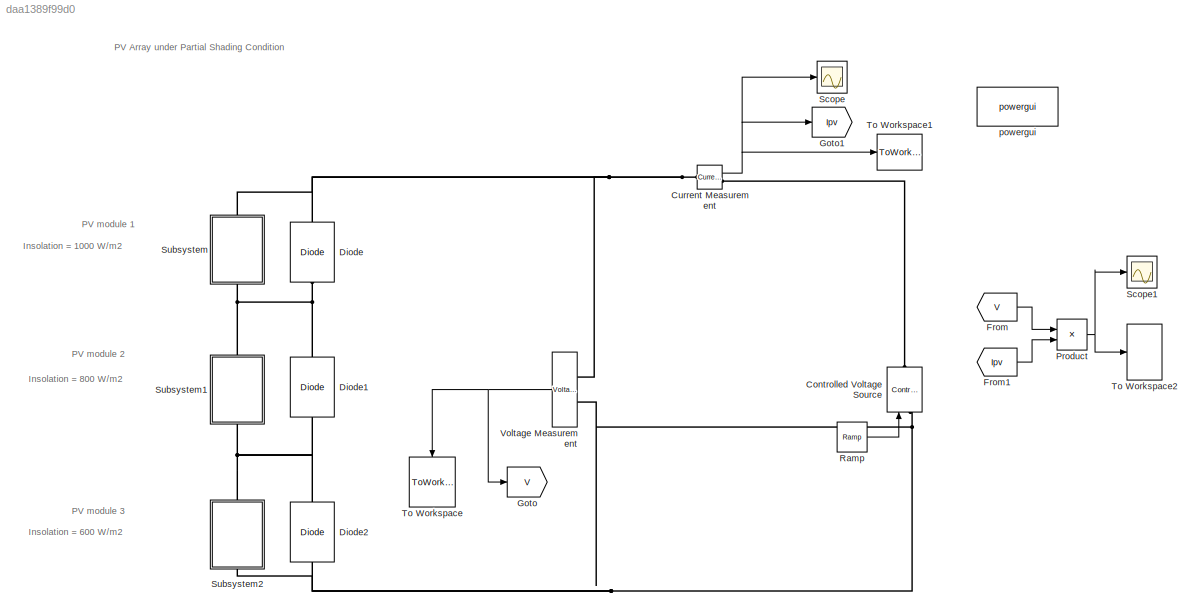
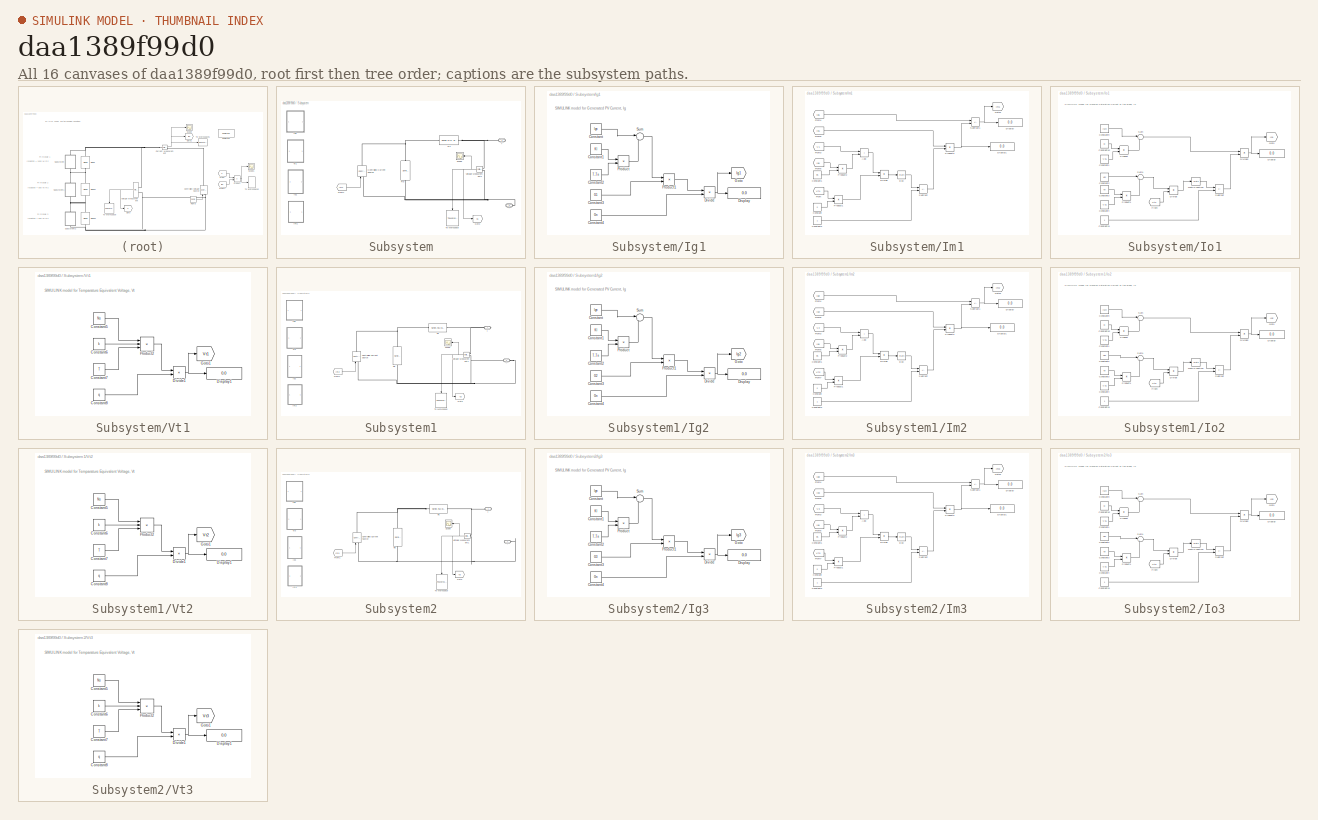
[diagram: thumbnail index - all 16 canvases of the model, root first then tree order]
MODEL slx_daa1389f99d0
KIND model
CONFIG AbsTol = auto
CONFIG EnableMultiTasking = off
CONFIG FixedStep = auto
CONFIG InitFcn = Voc=32.9;\nIscn=8.21;\nk=1.38e-23;\nNs=54;\nNp=1;\nG1=1000;\nG2=800;\nG3=600;\nGn=1000;\nKv=-0.1230;\nKI=0.0032;\nT=301;\nTn=300;\nq=1.6e-19;\nn=1;\nI0n=9.85e-8;\nEg=1.12;\nIgn=8.214;\nRs=0.221;\nRp=414.5;\na=1.0
CONFIG MaxStep = auto
CONFIG MinStep = auto
CONFIG RelTol = 1e-3
CONFIG SampleTimeConstraint = Unconstrained
CONFIG Solver = VariableStepAuto
CONFIG SolverName = VariableStepAuto
CONFIG StartTime = 0.0
CONFIG StopTime = 100
BLOCK [Reference] Controlled Voltage Source  REF=powerlib/Electrical
Sources/Controlled Voltage Source
  NameLocation = right
  Ports = [1, 0, 0, 0, 0, 1, 1]
  SourceBlock = powerlib/Electrical\nSources/Controlled Voltage Source
  SourceProductBaseCode = PS
  SourceType = Controlled Voltage Source
BLOCK [Reference] Current Measurement  REF=powerlib/Measurements/Current Measurement
  Ports = [0, 1, 0, 0, 0, 1, 1]
  SourceBlock = powerlib/Measurements/Current Measurement
  SourceProductBaseCode = PS
  SourceType = Current Measurement
  UserDataPersistent = on
BLOCK [Reference] Diode  REF=powerlib/Power
Electronics/Diode
  NameLocation = right
  Ports = [0, 0, 0, 0, 0, 1, 1]
  SourceBlock = powerlib/Power\nElectronics/Diode
  SourceProductBaseCode = PS
  SourceType = Diode
BLOCK [Reference] Diode1  REF=powerlib/Power
Electronics/Diode
  NameLocation = right
  Ports = [0, 0, 0, 0, 0, 1, 1]
  SourceBlock = powerlib/Power\nElectronics/Diode
  SourceProductBaseCode = PS
  SourceType = Diode
BLOCK [Reference] Diode2  REF=powerlib/Power
Electronics/Diode
  NameLocation = right
  Ports = [0, 0, 0, 0, 0, 1, 1]
  SourceBlock = powerlib/Power\nElectronics/Diode
  SourceProductBaseCode = PS
  SourceType = Diode
BLOCK [From] From
  GotoTag = V
  TagVisibility = global
BLOCK [From] From1
  GotoTag = Ipv
  TagVisibility = global
BLOCK [Goto] Goto
  GotoTag = V
  TagVisibility = global
BLOCK [Goto] Goto1
  GotoTag = Ipv
  TagVisibility = global
BLOCK [Product] Product
  Ports = [2, 1]
BLOCK [Reference] Ramp  REF=simulink/Sources/Ramp
  Ports = [0, 1]
  SourceBlock = simulink/Sources/Ramp
  SourceProductBaseCode = SL
  SourceType = Ramp
BLOCK [Scope] Scope
  Floating = off
  NumInputPorts = 1
  Ports = [1]
  ScopeSpecificationString = Simulink.scopes.TimeScopeBlockCfg('CurrentConfiguration', extmgr.ConfigurationSet(extmgr.Configuration('Core','General UI',true),extmgr.Configuration('Core','Source UI',true),extmgr.Configuration('Sources','WiredSimulink',true),extmgr.Configuration('Visuals','Time Domain',true,'SerializedDisplays',{struct('MinYLimReal','-3.52234','MaxYLimReal','9.51242','YLabelReal','','MinYLimMag','0.00000','MaxY...<+1366ch>
BLOCK [Scope] Scope1
  Floating = off
  NumInputPorts = 1
  Ports = [1]
  ScopeSpecificationString = Simulink.scopes.TimeScopeBlockCfg('CurrentConfiguration', extmgr.ConfigurationSet(extmgr.Configuration('Core','General UI',true),extmgr.Configuration('Core','Source UI',true),extmgr.Configuration('Sources','WiredSimulink',true,'DataLoggingVariableName','ScopeData2'),extmgr.Configuration('Visuals','Time Domain',true,'SerializedDisplays',{struct('MinYLimReal','-300.61077','MaxYLimReal','486.63466','...<+1720ch>
BLOCK [SubSystem] Subsystem
  NameLocation = right
  Ports = [0, 0, 0, 0, 0, 1, 1]
  RequestExecContextInheritance = off
BLOCK [PMIOPort] Subsystem/+
  Side = Right
BLOCK [PMIOPort] Subsystem/-
  Port = 2
  Side = Left
BLOCK [Reference] Subsystem/Controlled Current Source  REF=powerlib/Electrical
Sources/Controlled Current Source
  NameLocation = right
  Ports = [1, 0, 0, 0, 0, 1, 1]
  SourceBlock = powerlib/Electrical\nSources/Controlled Current Source
  SourceProductBaseCode = PS
  SourceType = Controlled Current Source
BLOCK [From] Subsystem/From1
  GotoTag = Im1
  TagVisibility = global
BLOCK [Goto] Subsystem/Goto
  GotoTag = V1
  TagVisibility = global
BLOCK [SubSystem] Subsystem/Ig1
  Ports = []
  RequestExecContextInheritance = off
BLOCK [Constant] Subsystem/Ig1/Constant
  Value = Ign
BLOCK [Constant] Subsystem/Ig1/Constant1
  Value = KI
BLOCK [Constant] Subsystem/Ig1/Constant2
  Value = T-Tn
BLOCK [Constant] Subsystem/Ig1/Constant3
  Value = G1
BLOCK [Constant] Subsystem/Ig1/Constant4
  Value = Gn
BLOCK [Display] Subsystem/Ig1/Display
  Decimation = 1
  Ports = [1]
BLOCK [Product] Subsystem/Ig1/Divide
  Inputs = */
  Ports = [2, 1]
BLOCK [Goto] Subsystem/Ig1/Goto
  GotoTag = Ig1
  TagVisibility = global
BLOCK [Product] Subsystem/Ig1/Product
  Ports = [2, 1]
BLOCK [Product] Subsystem/Ig1/Product1
  Ports = [2, 1]
BLOCK [Sum] Subsystem/Ig1/Sum
  Inputs = |++
  Ports = [2, 1]
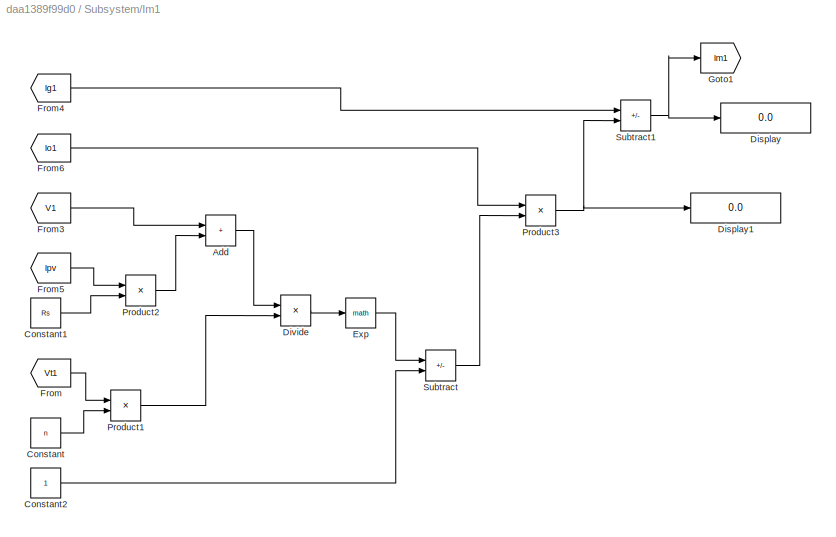
BLOCK [SubSystem] Subsystem/Im1
  Ports = []
  RequestExecContextInheritance = off
BLOCK [Sum] Subsystem/Im1/Add
  IconShape = rectangular
  Ports = [2, 1]
BLOCK [Constant] Subsystem/Im1/Constant
  Value = n
BLOCK [Constant] Subsystem/Im1/Constant1
  Value = Rs
BLOCK [Constant] Subsystem/Im1/Constant2
BLOCK [Display] Subsystem/Im1/Display
  Decimation = 1
  Ports = [1]
BLOCK [Display] Subsystem/Im1/Display1
  Decimation = 1
  Ports = [1]
BLOCK [Product] Subsystem/Im1/Divide
  Inputs = */
  Ports = [2, 1]
BLOCK [Math] Subsystem/Im1/Exp
  Ports = [1, 1]
BLOCK [From] Subsystem/Im1/From
  GotoTag = Vt1
  TagVisibility = global
BLOCK [From] Subsystem/Im1/From3
  GotoTag = V1
  TagVisibility = global
BLOCK [From] Subsystem/Im1/From4
  GotoTag = Ig1
  TagVisibility = global
BLOCK [From] Subsystem/Im1/From5
  GotoTag = Ipv
  TagVisibility = global
BLOCK [From] Subsystem/Im1/From6
  GotoTag = Io1
  TagVisibility = global
BLOCK [Goto] Subsystem/Im1/Goto1
  GotoTag = Im1
  TagVisibility = global
BLOCK [Product] Subsystem/Im1/Product1
  Ports = [2, 1]
BLOCK [Product] Subsystem/Im1/Product2
  Ports = [2, 1]
BLOCK [Product] Subsystem/Im1/Product3
  Ports = [2, 1]
BLOCK [Sum] Subsystem/Im1/Subtract
  IconShape = rectangular
  Inputs = +-
  Ports = [2, 1]
BLOCK [Sum] Subsystem/Im1/Subtract1
  IconShape = rectangular
  Inputs = +-
  Ports = [2, 1]
BLOCK [SubSystem] Subsystem/Io1
  Ports = []
  RequestExecContextInheritance = off
BLOCK [Constant] Subsystem/Io1/Constant1
  Value = T-Tn
BLOCK [Constant] Subsystem/Io1/Constant10
  Value = KI
BLOCK [Constant] Subsystem/Io1/Constant11
BLOCK [Constant] Subsystem/Io1/Constant2
  Value = Voc
BLOCK [Constant] Subsystem/Io1/Constant3
  Value = Kv
BLOCK [Constant] Subsystem/Io1/Constant4
  Value = T-Tn
BLOCK [Constant] Subsystem/Io1/Constant9
  Value = Iscn
BLOCK [Display] Subsystem/Io1/Display
  Decimation = 1
  Ports = [1]
BLOCK [Product] Subsystem/Io1/Divide
  Inputs = */
  Ports = [2, 1]
BLOCK [Product] Subsystem/Io1/Divide2
  Inputs = */
  Ports = [2, 1]
BLOCK [From] Subsystem/Io1/From
  GotoTag = Vt1
  TagVisibility = global
BLOCK [Goto] Subsystem/Io1/Goto
  GotoTag = Io1
  TagVisibility = global
BLOCK [Math] Subsystem/Io1/Math Function
  Ports = [1, 1]
BLOCK [Product] Subsystem/Io1/Product
  Ports = [2, 1]
BLOCK [Product] Subsystem/Io1/Product1
  Ports = [2, 1]
BLOCK [Sum] Subsystem/Io1/Subtract
  IconShape = rectangular
  Inputs = +-
  Ports = [2, 1]
BLOCK [Sum] Subsystem/Io1/Sum
  Inputs = |++
  Ports = [2, 1]
BLOCK [Sum] Subsystem/Io1/Sum1
  Inputs = |++
  Ports = [2, 1]
BLOCK [Reference] Subsystem/Rp  REF=powerlib/Elements/Series RLC Branch
  NameLocation = left
  Ports = [0, 0, 0, 0, 0, 1, 1]
  SourceBlock = powerlib/Elements/Series RLC Branch
  SourceProductBaseCode = PS
  SourceType = Series RLC Branch
BLOCK [Reference] Subsystem/Rs  REF=powerlib/Elements/Series RLC Branch
  Ports = [0, 0, 0, 0, 0, 1, 1]
  SourceBlock = powerlib/Elements/Series RLC Branch
  SourceProductBaseCode = PS
  SourceType = Series RLC Branch
BLOCK [Scope] Subsystem/Scope
  Floating = off
  NumInputPorts = 1
  Ports = [1]
  ScopeSpecificationString = Simulink.scopes.TimeScopeBlockCfg('CurrentConfiguration', extmgr.ConfigurationSet(extmgr.Configuration('Core','General UI',true),extmgr.Configuration('Core','Source UI',true),extmgr.Configuration('Sources','WiredSimulink',true,'DataLoggingVariableName','ScopeData1'),extmgr.Configuration('Visuals','Time Domain',true,'SerializedDisplays',{struct('MinYLimReal','-4.1125','MaxYLimReal','37.0125','YLabe...<+1404ch>
BLOCK [ToWorkspace] Subsystem/To Workspace
  FixptAsFi = on
  MaxDataPoints = inf
  NameLocation = left
  Ports = [1]
  SampleTime = -1
  SaveFormat = Timeseries
  VariableName = V1
BLOCK [Reference] Subsystem/Voltage Measurement1  REF=powerlib/Measurements/Voltage Measurement
  Ports = [0, 1, 0, 0, 0, 2]
  SourceBlock = powerlib/Measurements/Voltage Measurement
  SourceProductBaseCode = PS
  SourceType = Voltage Measurement
  UserDataPersistent = on
BLOCK [SubSystem] Subsystem/Vt1
  Ports = []
  RequestExecContextInheritance = off
BLOCK [Constant] Subsystem/Vt1/Constant5
  Value = Ns
BLOCK [Constant] Subsystem/Vt1/Constant6
  Value = k
BLOCK [Constant] Subsystem/Vt1/Constant7
  Value = T
BLOCK [Constant] Subsystem/Vt1/Constant8
  Value = q
BLOCK [Display] Subsystem/Vt1/Display1
  Decimation = 1
  Ports = [1]
BLOCK [Product] Subsystem/Vt1/Divide1
  Inputs = */
  Ports = [2, 1]
BLOCK [Goto] Subsystem/Vt1/Goto1
  GotoTag = Vt1
  TagVisibility = global
BLOCK [Product] Subsystem/Vt1/Product2
  Inputs = 3
  Ports = [3, 1]
BLOCK [SubSystem] Subsystem1
  NameLocation = right
  Ports = [0, 0, 0, 0, 0, 1, 1]
  RequestExecContextInheritance = off
BLOCK [PMIOPort] Subsystem1/+
  Side = Right
BLOCK [PMIOPort] Subsystem1/-
  Port = 2
  Side = Left
BLOCK [Reference] Subsystem1/Controlled Current Source  REF=powerlib/Electrical
Sources/Controlled Current Source
  NameLocation = right
  Ports = [1, 0, 0, 0, 0, 1, 1]
  SourceBlock = powerlib/Electrical\nSources/Controlled Current Source
  SourceProductBaseCode = PS
  SourceType = Controlled Current Source
BLOCK [From] Subsystem1/From1
  GotoTag = Im2
  TagVisibility = global
BLOCK [Goto] Subsystem1/Goto
  GotoTag = V2
  TagVisibility = global
BLOCK [SubSystem] Subsystem1/Ig2
  Ports = []
  RequestExecContextInheritance = off
BLOCK [Constant] Subsystem1/Ig2/Constant
  Value = Ign
BLOCK [Constant] Subsystem1/Ig2/Constant1
  Value = KI
BLOCK [Constant] Subsystem1/Ig2/Constant2
  Value = T-Tn
BLOCK [Constant] Subsystem1/Ig2/Constant3
  Value = G2
BLOCK [Constant] Subsystem1/Ig2/Constant4
  Value = Gn
BLOCK [Display] Subsystem1/Ig2/Display
  Decimation = 1
  Ports = [1]
BLOCK [Product] Subsystem1/Ig2/Divide
  Inputs = */
  Ports = [2, 1]
BLOCK [Goto] Subsystem1/Ig2/Goto
  GotoTag = Ig2
  TagVisibility = global
BLOCK [Product] Subsystem1/Ig2/Product
  Ports = [2, 1]
BLOCK [Product] Subsystem1/Ig2/Product1
  Ports = [2, 1]
BLOCK [Sum] Subsystem1/Ig2/Sum
  Inputs = |++
  Ports = [2, 1]
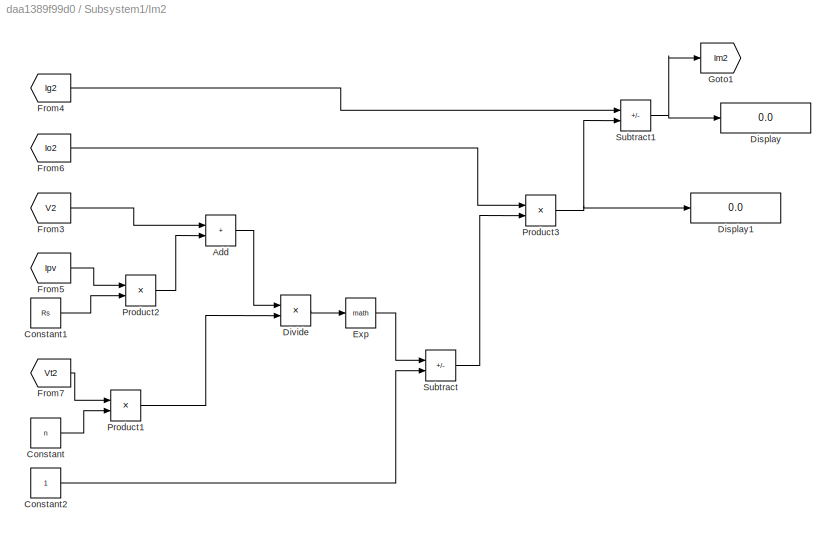
BLOCK [SubSystem] Subsystem1/Im2
  Ports = []
  RequestExecContextInheritance = off
BLOCK [Sum] Subsystem1/Im2/Add
  IconShape = rectangular
  Ports = [2, 1]
BLOCK [Constant] Subsystem1/Im2/Constant
  Value = n
BLOCK [Constant] Subsystem1/Im2/Constant1
  Value = Rs
BLOCK [Constant] Subsystem1/Im2/Constant2
BLOCK [Display] Subsystem1/Im2/Display
  Decimation = 1
  Ports = [1]
BLOCK [Display] Subsystem1/Im2/Display1
  Decimation = 1
  Ports = [1]
BLOCK [Product] Subsystem1/Im2/Divide
  Inputs = */
  Ports = [2, 1]
BLOCK [Math] Subsystem1/Im2/Exp
  Ports = [1, 1]
BLOCK [From] Subsystem1/Im2/From3
  GotoTag = V2
  TagVisibility = global
BLOCK [From] Subsystem1/Im2/From4
  GotoTag = Ig2
  TagVisibility = global
BLOCK [From] Subsystem1/Im2/From5
  GotoTag = Ipv
  TagVisibility = global
BLOCK [From] Subsystem1/Im2/From6
  GotoTag = Io2
  TagVisibility = global
BLOCK [From] Subsystem1/Im2/From7
  GotoTag = Vt2
  TagVisibility = global
BLOCK [Goto] Subsystem1/Im2/Goto1
  GotoTag = Im2
  TagVisibility = global
BLOCK [Product] Subsystem1/Im2/Product1
  Ports = [2, 1]
BLOCK [Product] Subsystem1/Im2/Product2
  Ports = [2, 1]
BLOCK [Product] Subsystem1/Im2/Product3
  Ports = [2, 1]
BLOCK [Sum] Subsystem1/Im2/Subtract
  IconShape = rectangular
  Inputs = +-
  Ports = [2, 1]
BLOCK [Sum] Subsystem1/Im2/Subtract1
  IconShape = rectangular
  Inputs = +-
  Ports = [2, 1]
BLOCK [SubSystem] Subsystem1/Io2
  Ports = []
  RequestExecContextInheritance = off
BLOCK [Constant] Subsystem1/Io2/Constant1
  Value = T-Tn
BLOCK [Constant] Subsystem1/Io2/Constant10
  Value = KI
BLOCK [Constant] Subsystem1/Io2/Constant11
BLOCK [Constant] Subsystem1/Io2/Constant2
  Value = Voc
BLOCK [Constant] Subsystem1/Io2/Constant3
  Value = Kv
BLOCK [Constant] Subsystem1/Io2/Constant4
  Value = T-Tn
BLOCK [Constant] Subsystem1/Io2/Constant9
  Value = Iscn
BLOCK [Display] Subsystem1/Io2/Display
  Decimation = 1
  Ports = [1]
BLOCK [Product] Subsystem1/Io2/Divide
  Inputs = */
  Ports = [2, 1]
BLOCK [Product] Subsystem1/Io2/Divide2
  Inputs = */
  Ports = [2, 1]
BLOCK [From] Subsystem1/Io2/From
  GotoTag = Vt2
  TagVisibility = global
BLOCK [Goto] Subsystem1/Io2/Goto
  GotoTag = Io2
  TagVisibility = global
BLOCK [Math] Subsystem1/Io2/Math Function
  Ports = [1, 1]
BLOCK [Product] Subsystem1/Io2/Product
  Ports = [2, 1]
BLOCK [Product] Subsystem1/Io2/Product1
  Ports = [2, 1]
BLOCK [Sum] Subsystem1/Io2/Subtract
  IconShape = rectangular
  Inputs = +-
  Ports = [2, 1]
BLOCK [Sum] Subsystem1/Io2/Sum
  Inputs = |++
  Ports = [2, 1]
BLOCK [Sum] Subsystem1/Io2/Sum1
  Inputs = |++
  Ports = [2, 1]
BLOCK [Reference] Subsystem1/Rp  REF=powerlib/Elements/Series RLC Branch
  NameLocation = left
  Ports = [0, 0, 0, 0, 0, 1, 1]
  SourceBlock = powerlib/Elements/Series RLC Branch
  SourceProductBaseCode = PS
  SourceType = Series RLC Branch
BLOCK [Reference] Subsystem1/Rs  REF=powerlib/Elements/Series RLC Branch
  Ports = [0, 0, 0, 0, 0, 1, 1]
  SourceBlock = powerlib/Elements/Series RLC Branch
  SourceProductBaseCode = PS
  SourceType = Series RLC Branch
BLOCK [Scope] Subsystem1/Scope
  Floating = off
  NumInputPorts = 1
  Ports = [1]
  ScopeSpecificationString = Simulink.scopes.TimeScopeBlockCfg('CurrentConfiguration', extmgr.ConfigurationSet(extmgr.Configuration('Core','General UI',true),extmgr.Configuration('Core','Source UI',true),extmgr.Configuration('Sources','WiredSimulink',true,'DataLoggingVariableName','ScopeData1'),extmgr.Configuration('Visuals','Time Domain',true,'SerializedDisplays',{struct('MinYLimReal','-4.1125','MaxYLimReal','37.0125','YLabe...<+1404ch>
BLOCK [ToWorkspace] Subsystem1/To Workspace
  FixptAsFi = on
  MaxDataPoints = inf
  NameLocation = left
  Ports = [1]
  SampleTime = -1
  SaveFormat = Timeseries
  VariableName = V2
BLOCK [Reference] Subsystem1/Voltage Measurement1  REF=powerlib/Measurements/Voltage Measurement
  Ports = [0, 1, 0, 0, 0, 2]
  SourceBlock = powerlib/Measurements/Voltage Measurement
  SourceProductBaseCode = PS
  SourceType = Voltage Measurement
  UserDataPersistent = on
BLOCK [SubSystem] Subsystem1/Vt2
  Ports = []
  RequestExecContextInheritance = off
BLOCK [Constant] Subsystem1/Vt2/Constant5
  Value = Ns
BLOCK [Constant] Subsystem1/Vt2/Constant6
  Value = k
BLOCK [Constant] Subsystem1/Vt2/Constant7
  Value = T
BLOCK [Constant] Subsystem1/Vt2/Constant8
  Value = q
BLOCK [Display] Subsystem1/Vt2/Display1
  Decimation = 1
  Ports = [1]
BLOCK [Product] Subsystem1/Vt2/Divide1
  Inputs = */
  Ports = [2, 1]
BLOCK [Goto] Subsystem1/Vt2/Goto1
  GotoTag = Vt2
  TagVisibility = global
BLOCK [Product] Subsystem1/Vt2/Product2
  Inputs = 3
  Ports = [3, 1]
BLOCK [SubSystem] Subsystem2
  NameLocation = right
  Ports = [0, 0, 0, 0, 0, 1, 1]
  RequestExecContextInheritance = off
BLOCK [PMIOPort] Subsystem2/+
  Side = Right
BLOCK [PMIOPort] Subsystem2/-
  Port = 2
  Side = Left
BLOCK [Reference] Subsystem2/Controlled Current Source  REF=powerlib/Electrical
Sources/Controlled Current Source
  NameLocation = right
  Ports = [1, 0, 0, 0, 0, 1, 1]
  SourceBlock = powerlib/Electrical\nSources/Controlled Current Source
  SourceProductBaseCode = PS
  SourceType = Controlled Current Source
BLOCK [From] Subsystem2/From1
  GotoTag = Im3
  TagVisibility = global
BLOCK [Goto] Subsystem2/Goto
  GotoTag = V3
  TagVisibility = global
BLOCK [SubSystem] Subsystem2/Ig3
  Ports = []
  RequestExecContextInheritance = off
BLOCK [Constant] Subsystem2/Ig3/Constant
  Value = Ign
BLOCK [Constant] Subsystem2/Ig3/Constant1
  Value = KI
BLOCK [Constant] Subsystem2/Ig3/Constant2
  Value = T-Tn
BLOCK [Constant] Subsystem2/Ig3/Constant3
  Value = G3
BLOCK [Constant] Subsystem2/Ig3/Constant4
  Value = Gn
BLOCK [Display] Subsystem2/Ig3/Display
  Decimation = 1
  Ports = [1]
BLOCK [Product] Subsystem2/Ig3/Divide
  Inputs = */
  Ports = [2, 1]
BLOCK [Goto] Subsystem2/Ig3/Goto
  GotoTag = Ig3
  TagVisibility = global
BLOCK [Product] Subsystem2/Ig3/Product
  Ports = [2, 1]
BLOCK [Product] Subsystem2/Ig3/Product1
  Ports = [2, 1]
BLOCK [Sum] Subsystem2/Ig3/Sum
  Inputs = |++
  Ports = [2, 1]
BLOCK [SubSystem] Subsystem2/Im3
  Ports = []
  RequestExecContextInheritance = off
BLOCK [Sum] Subsystem2/Im3/Add
  IconShape = rectangular
  Ports = [2, 1]
BLOCK [Constant] Subsystem2/Im3/Constant
  Value = n
BLOCK [Constant] Subsystem2/Im3/Constant1
  Value = Rs
BLOCK [Constant] Subsystem2/Im3/Constant2
BLOCK [Display] Subsystem2/Im3/Display
  Decimation = 1
  Ports = [1]
BLOCK [Display] Subsystem2/Im3/Display1
  Decimation = 1
  Ports = [1]
BLOCK [Product] Subsystem2/Im3/Divide
  Inputs = */
  Ports = [2, 1]
BLOCK [Math] Subsystem2/Im3/Exp
  Ports = [1, 1]
BLOCK [From] Subsystem2/Im3/From3
  GotoTag = V3
  TagVisibility = global
BLOCK [From] Subsystem2/Im3/From4
  GotoTag = Ig3
  TagVisibility = global
BLOCK [From] Subsystem2/Im3/From5
  GotoTag = Ipv
  TagVisibility = global
BLOCK [From] Subsystem2/Im3/From6
  GotoTag = Io3
  TagVisibility = global
BLOCK [From] Subsystem2/Im3/From7
  GotoTag = Vt3
  TagVisibility = global
BLOCK [Goto] Subsystem2/Im3/Goto1
  GotoTag = Im3
  TagVisibility = global
BLOCK [Product] Subsystem2/Im3/Product1
  Ports = [2, 1]
BLOCK [Product] Subsystem2/Im3/Product2
  Ports = [2, 1]
BLOCK [Product] Subsystem2/Im3/Product3
  Ports = [2, 1]
BLOCK [Sum] Subsystem2/Im3/Subtract
  IconShape = rectangular
  Inputs = +-
  Ports = [2, 1]
BLOCK [Sum] Subsystem2/Im3/Subtract1
  IconShape = rectangular
  Inputs = +-
  Ports = [2, 1]
BLOCK [SubSystem] Subsystem2/Io3
  Ports = []
  RequestExecContextInheritance = off
BLOCK [Constant] Subsystem2/Io3/Constant1
  Value = T-Tn
BLOCK [Constant] Subsystem2/Io3/Constant10
  Value = KI
BLOCK [Constant] Subsystem2/Io3/Constant11
BLOCK [Constant] Subsystem2/Io3/Constant2
  Value = Voc
BLOCK [Constant] Subsystem2/Io3/Constant3
  Value = Kv
BLOCK [Constant] Subsystem2/Io3/Constant4
  Value = T-Tn
BLOCK [Constant] Subsystem2/Io3/Constant9
  Value = Iscn
BLOCK [Display] Subsystem2/Io3/Display
  Decimation = 1
  Ports = [1]
BLOCK [Product] Subsystem2/Io3/Divide
  Inputs = */
  Ports = [2, 1]
BLOCK [Product] Subsystem2/Io3/Divide2
  Inputs = */
  Ports = [2, 1]
BLOCK [From] Subsystem2/Io3/From
  GotoTag = Vt3
  TagVisibility = global
BLOCK [Goto] Subsystem2/Io3/Goto
  GotoTag = Io3
  TagVisibility = global
BLOCK [Math] Subsystem2/Io3/Math Function
  Ports = [1, 1]
BLOCK [Product] Subsystem2/Io3/Product
  Ports = [2, 1]
BLOCK [Product] Subsystem2/Io3/Product1
  Ports = [2, 1]
BLOCK [Sum] Subsystem2/Io3/Subtract
  IconShape = rectangular
  Inputs = +-
  Ports = [2, 1]
BLOCK [Sum] Subsystem2/Io3/Sum
  Inputs = |++
  Ports = [2, 1]
BLOCK [Sum] Subsystem2/Io3/Sum1
  Inputs = |++
  Ports = [2, 1]
BLOCK [Reference] Subsystem2/Rp  REF=powerlib/Elements/Series RLC Branch
  NameLocation = left
  Ports = [0, 0, 0, 0, 0, 1, 1]
  SourceBlock = powerlib/Elements/Series RLC Branch
  SourceProductBaseCode = PS
  SourceType = Series RLC Branch
BLOCK [Reference] Subsystem2/Rs  REF=powerlib/Elements/Series RLC Branch
  Ports = [0, 0, 0, 0, 0, 1, 1]
  SourceBlock = powerlib/Elements/Series RLC Branch
  SourceProductBaseCode = PS
  SourceType = Series RLC Branch
BLOCK [Scope] Subsystem2/Scope
  Floating = off
  NumInputPorts = 1
  Ports = [1]
  ScopeSpecificationString = Simulink.scopes.TimeScopeBlockCfg('CurrentConfiguration', extmgr.ConfigurationSet(extmgr.Configuration('Core','General UI',true),extmgr.Configuration('Core','Source UI',true),extmgr.Configuration('Sources','WiredSimulink',true,'DataLoggingVariableName','ScopeData1'),extmgr.Configuration('Visuals','Time Domain',true,'SerializedDisplays',{struct('MinYLimReal','-5.03586','MaxYLimReal','37.28995','YLa...<+1410ch>
BLOCK [ToWorkspace] Subsystem2/To Workspace
  FixptAsFi = on
  MaxDataPoints = inf
  NameLocation = left
  Ports = [1]
  SampleTime = -1
  SaveFormat = Timeseries
  VariableName = V3
BLOCK [Reference] Subsystem2/Voltage Measurement1  REF=powerlib/Measurements/Voltage Measurement
  Ports = [0, 1, 0, 0, 0, 2]
  SourceBlock = powerlib/Measurements/Voltage Measurement
  SourceProductBaseCode = PS
  SourceType = Voltage Measurement
  UserDataPersistent = on
BLOCK [SubSystem] Subsystem2/Vt3
  Ports = []
  RequestExecContextInheritance = off
BLOCK [Constant] Subsystem2/Vt3/Constant5
  Value = Ns
BLOCK [Constant] Subsystem2/Vt3/Constant6
  Value = k
BLOCK [Constant] Subsystem2/Vt3/Constant7
  Value = T
BLOCK [Constant] Subsystem2/Vt3/Constant8
  Value = q
BLOCK [Display] Subsystem2/Vt3/Display1
  Decimation = 1
  Ports = [1]
BLOCK [Product] Subsystem2/Vt3/Divide1
  Inputs = */
  Ports = [2, 1]
BLOCK [Goto] Subsystem2/Vt3/Goto1
  GotoTag = Vt3
  TagVisibility = global
BLOCK [Product] Subsystem2/Vt3/Product2
  Inputs = 3
  Ports = [3, 1]
BLOCK [ToWorkspace] To Workspace
  FixptAsFi = on
  MaxDataPoints = inf
  NameLocation = left
  Ports = [1]
  SampleTime = -1
  SaveFormat = Timeseries
  VariableName = V
BLOCK [ToWorkspace] To Workspace1
  FixptAsFi = on
  MaxDataPoints = inf
  Ports = [1]
  SampleTime = -1
  SaveFormat = Timeseries
  VariableName = Ipv
BLOCK [ToWorkspace] To Workspace2
  FixptAsFi = on
  MaxDataPoints = inf
  Ports = [1]
  SampleTime = -1
  SaveFormat = Timeseries
  VariableName = P
BLOCK [Reference] Voltage Measurement  REF=powerlib/Measurements/Voltage Measurement
  Ports = [0, 1, 0, 0, 0, 2]
  SourceBlock = powerlib/Measurements/Voltage Measurement
  SourceProductBaseCode = PS
  SourceType = Voltage Measurement
  UserDataPersistent = on
BLOCK [Reference] powergui  REF=powerlib/powergui
  Ports = []
  Priority = 1
  SourceBlock = powerlib/powergui
  SourceProductBaseCode = PS
  SourceType = PSB option menu block
ANNOTATION (root): PV module 1
ANNOTATION (root): PV module 2
ANNOTATION (root): PV module 3
ANNOTATION (root): Insolation = 1000 W/m2
ANNOTATION (root): Insolation = 600 W/m2
ANNOTATION (root): Insolation = 800 W/m2
ANNOTATION (root): PV Array under Partial Shading Condition
ANNOTATION Subsystem/Ig1: SIMULINK model for Generated PV Current, Ig
ANNOTATION Subsystem/Io1: SIMULINK Model for Reverse Saturation Current of the diode, Io
ANNOTATION Subsystem/Vt1: SIMULINK model for Temparature Equivalent Voltage, Vt
ANNOTATION Subsystem1/Ig2: SIMULINK model for Generated PV Current, Ig
ANNOTATION Subsystem1/Io2: SIMULINK Model for Reverse Saturation Current of the diode, Io
ANNOTATION Subsystem1/Vt2: SIMULINK model for Temparature Equivalent Voltage, Vt
ANNOTATION Subsystem2/Ig3: SIMULINK model for Generated PV Current, Ig
ANNOTATION Subsystem2/Io3: SIMULINK Model for Reverse Saturation Current of the diode, Io
ANNOTATION Subsystem2/Vt3: SIMULINK model for Temparature Equivalent Voltage, Vt
NET Current Measurement:1 -> Goto1:1, Scope:1, To Workspace1:1
LINE From1:1 -> Product:2
LINE From:1 -> Product:1
NET Product:1 -> Scope1:1, To Workspace2:1
LINE Ramp:1 -> Controlled Voltage Source:1
LINE Subsystem/From1:1 -> Subsystem/Controlled Current Source:1
LINE Subsystem/Ig1/Constant1:1 -> Subsystem/Ig1/Product:1
LINE Subsystem/Ig1/Constant2:1 -> Subsystem/Ig1/Product:2
LINE Subsystem/Ig1/Constant3:1 -> Subsystem/Ig1/Product1:2
LINE Subsystem/Ig1/Constant4:1 -> Subsystem/Ig1/Divide:2
LINE Subsystem/Ig1/Constant:1 -> Subsystem/Ig1/Sum:1
NET Subsystem/Ig1/Divide:1 -> Subsystem/Ig1/Display:1, Subsystem/Ig1/Goto:1
LINE Subsystem/Ig1/Product1:1 -> Subsystem/Ig1/Divide:1
LINE Subsystem/Ig1/Product:1 -> Subsystem/Ig1/Sum:2
LINE Subsystem/Ig1/Sum:1 -> Subsystem/Ig1/Product1:1
LINE Subsystem/Im1/Add:1 -> Subsystem/Im1/Divide:1
LINE Subsystem/Im1/Constant1:1 -> Subsystem/Im1/Product2:2
LINE Subsystem/Im1/Constant2:1 -> Subsystem/Im1/Subtract:2
LINE Subsystem/Im1/Constant:1 -> Subsystem/Im1/Product1:2
LINE Subsystem/Im1/Divide:1 -> Subsystem/Im1/Exp:1
LINE Subsystem/Im1/Exp:1 -> Subsystem/Im1/Subtract:1
LINE Subsystem/Im1/From3:1 -> Subsystem/Im1/Add:1
LINE Subsystem/Im1/From4:1 -> Subsystem/Im1/Subtract1:1
LINE Subsystem/Im1/From5:1 -> Subsystem/Im1/Product2:1
LINE Subsystem/Im1/From6:1 -> Subsystem/Im1/Product3:1
LINE Subsystem/Im1/From:1 -> Subsystem/Im1/Product1:1
LINE Subsystem/Im1/Product1:1 -> Subsystem/Im1/Divide:2
LINE Subsystem/Im1/Product2:1 -> Subsystem/Im1/Add:2
NET Subsystem/Im1/Product3:1 -> Subsystem/Im1/Display1:1, Subsystem/Im1/Subtract1:2
NET Subsystem/Im1/Subtract1:1 -> Subsystem/Im1/Display:1, Subsystem/Im1/Goto1:1
LINE Subsystem/Im1/Subtract:1 -> Subsystem/Im1/Product3:2
LINE Subsystem/Io1/Constant10:1 -> Subsystem/Io1/Product:1
LINE Subsystem/Io1/Constant11:1 -> Subsystem/Io1/Subtract:2
LINE Subsystem/Io1/Constant1:1 -> Subsystem/Io1/Product:2
LINE Subsystem/Io1/Constant2:1 -> Subsystem/Io1/Sum1:1
LINE Subsystem/Io1/Constant3:1 -> Subsystem/Io1/Product1:1
LINE Subsystem/Io1/Constant4:1 -> Subsystem/Io1/Product1:2
LINE Subsystem/Io1/Constant9:1 -> Subsystem/Io1/Sum:1
NET Subsystem/Io1/Divide2:1 -> Subsystem/Io1/Display:1, Subsystem/Io1/Goto:1
LINE Subsystem/Io1/Divide:1 -> Subsystem/Io1/Math Function:1
LINE Subsystem/Io1/From:1 -> Subsystem/Io1/Divide:2
LINE Subsystem/Io1/Math Function:1 -> Subsystem/Io1/Subtract:1
LINE Subsystem/Io1/Product1:1 -> Subsystem/Io1/Sum1:2
LINE Subsystem/Io1/Product:1 -> Subsystem/Io1/Sum:2
LINE Subsystem/Io1/Subtract:1 -> Subsystem/Io1/Divide2:2
LINE Subsystem/Io1/Sum1:1 -> Subsystem/Io1/Divide:1
LINE Subsystem/Io1/Sum:1 -> Subsystem/Io1/Divide2:1
NET Subsystem/Voltage Measurement1:1 -> Subsystem/Goto:1, Subsystem/Scope:1, Subsystem/To Workspace:1
LINE Subsystem/Vt1/Constant5:1 -> Subsystem/Vt1/Product2:1
LINE Subsystem/Vt1/Constant6:1 -> Subsystem/Vt1/Product2:2
LINE Subsystem/Vt1/Constant7:1 -> Subsystem/Vt1/Product2:3
LINE Subsystem/Vt1/Constant8:1 -> Subsystem/Vt1/Divide1:2
NET Subsystem/Vt1/Divide1:1 -> Subsystem/Vt1/Display1:1, Subsystem/Vt1/Goto1:1
LINE Subsystem/Vt1/Product2:1 -> Subsystem/Vt1/Divide1:1
LINE Subsystem1/From1:1 -> Subsystem1/Controlled Current Source:1
LINE Subsystem1/Ig2/Constant1:1 -> Subsystem1/Ig2/Product:1
LINE Subsystem1/Ig2/Constant2:1 -> Subsystem1/Ig2/Product:2
LINE Subsystem1/Ig2/Constant3:1 -> Subsystem1/Ig2/Product1:2
LINE Subsystem1/Ig2/Constant4:1 -> Subsystem1/Ig2/Divide:2
LINE Subsystem1/Ig2/Constant:1 -> Subsystem1/Ig2/Sum:1
NET Subsystem1/Ig2/Divide:1 -> Subsystem1/Ig2/Display:1, Subsystem1/Ig2/Goto:1
LINE Subsystem1/Ig2/Product1:1 -> Subsystem1/Ig2/Divide:1
LINE Subsystem1/Ig2/Product:1 -> Subsystem1/Ig2/Sum:2
LINE Subsystem1/Ig2/Sum:1 -> Subsystem1/Ig2/Product1:1
LINE Subsystem1/Im2/Add:1 -> Subsystem1/Im2/Divide:1
LINE Subsystem1/Im2/Constant1:1 -> Subsystem1/Im2/Product2:2
LINE Subsystem1/Im2/Constant2:1 -> Subsystem1/Im2/Subtract:2
LINE Subsystem1/Im2/Constant:1 -> Subsystem1/Im2/Product1:2
LINE Subsystem1/Im2/Divide:1 -> Subsystem1/Im2/Exp:1
LINE Subsystem1/Im2/Exp:1 -> Subsystem1/Im2/Subtract:1
LINE Subsystem1/Im2/From3:1 -> Subsystem1/Im2/Add:1
LINE Subsystem1/Im2/From4:1 -> Subsystem1/Im2/Subtract1:1
LINE Subsystem1/Im2/From5:1 -> Subsystem1/Im2/Product2:1
LINE Subsystem1/Im2/From6:1 -> Subsystem1/Im2/Product3:1
LINE Subsystem1/Im2/From7:1 -> Subsystem1/Im2/Product1:1
LINE Subsystem1/Im2/Product1:1 -> Subsystem1/Im2/Divide:2
LINE Subsystem1/Im2/Product2:1 -> Subsystem1/Im2/Add:2
NET Subsystem1/Im2/Product3:1 -> Subsystem1/Im2/Display1:1, Subsystem1/Im2/Subtract1:2
NET Subsystem1/Im2/Subtract1:1 -> Subsystem1/Im2/Display:1, Subsystem1/Im2/Goto1:1
LINE Subsystem1/Im2/Subtract:1 -> Subsystem1/Im2/Product3:2
LINE Subsystem1/Io2/Constant10:1 -> Subsystem1/Io2/Product:1
LINE Subsystem1/Io2/Constant11:1 -> Subsystem1/Io2/Subtract:2
LINE Subsystem1/Io2/Constant1:1 -> Subsystem1/Io2/Product:2
LINE Subsystem1/Io2/Constant2:1 -> Subsystem1/Io2/Sum1:1
LINE Subsystem1/Io2/Constant3:1 -> Subsystem1/Io2/Product1:1
LINE Subsystem1/Io2/Constant4:1 -> Subsystem1/Io2/Product1:2
LINE Subsystem1/Io2/Constant9:1 -> Subsystem1/Io2/Sum:1
NET Subsystem1/Io2/Divide2:1 -> Subsystem1/Io2/Display:1, Subsystem1/Io2/Goto:1
LINE Subsystem1/Io2/Divide:1 -> Subsystem1/Io2/Math Function:1
LINE Subsystem1/Io2/From:1 -> Subsystem1/Io2/Divide:2
LINE Subsystem1/Io2/Math Function:1 -> Subsystem1/Io2/Subtract:1
LINE Subsystem1/Io2/Product1:1 -> Subsystem1/Io2/Sum1:2
LINE Subsystem1/Io2/Product:1 -> Subsystem1/Io2/Sum:2
LINE Subsystem1/Io2/Subtract:1 -> Subsystem1/Io2/Divide2:2
LINE Subsystem1/Io2/Sum1:1 -> Subsystem1/Io2/Divide:1
LINE Subsystem1/Io2/Sum:1 -> Subsystem1/Io2/Divide2:1
NET Subsystem1/Voltage Measurement1:1 -> Subsystem1/Goto:1, Subsystem1/Scope:1, Subsystem1/To Workspace:1
LINE Subsystem1/Vt2/Constant5:1 -> Subsystem1/Vt2/Product2:1
LINE Subsystem1/Vt2/Constant6:1 -> Subsystem1/Vt2/Product2:2
LINE Subsystem1/Vt2/Constant7:1 -> Subsystem1/Vt2/Product2:3
LINE Subsystem1/Vt2/Constant8:1 -> Subsystem1/Vt2/Divide1:2
NET Subsystem1/Vt2/Divide1:1 -> Subsystem1/Vt2/Display1:1, Subsystem1/Vt2/Goto1:1
LINE Subsystem1/Vt2/Product2:1 -> Subsystem1/Vt2/Divide1:1
LINE Subsystem2/From1:1 -> Subsystem2/Controlled Current Source:1
LINE Subsystem2/Ig3/Constant1:1 -> Subsystem2/Ig3/Product:1
LINE Subsystem2/Ig3/Constant2:1 -> Subsystem2/Ig3/Product:2
LINE Subsystem2/Ig3/Constant3:1 -> Subsystem2/Ig3/Product1:2
LINE Subsystem2/Ig3/Constant4:1 -> Subsystem2/Ig3/Divide:2
LINE Subsystem2/Ig3/Constant:1 -> Subsystem2/Ig3/Sum:1
NET Subsystem2/Ig3/Divide:1 -> Subsystem2/Ig3/Display:1, Subsystem2/Ig3/Goto:1
LINE Subsystem2/Ig3/Product1:1 -> Subsystem2/Ig3/Divide:1
LINE Subsystem2/Ig3/Product:1 -> Subsystem2/Ig3/Sum:2
LINE Subsystem2/Ig3/Sum:1 -> Subsystem2/Ig3/Product1:1
LINE Subsystem2/Im3/Add:1 -> Subsystem2/Im3/Divide:1
LINE Subsystem2/Im3/Constant1:1 -> Subsystem2/Im3/Product2:2
LINE Subsystem2/Im3/Constant2:1 -> Subsystem2/Im3/Subtract:2
LINE Subsystem2/Im3/Constant:1 -> Subsystem2/Im3/Product1:2
LINE Subsystem2/Im3/Divide:1 -> Subsystem2/Im3/Exp:1
LINE Subsystem2/Im3/Exp:1 -> Subsystem2/Im3/Subtract:1
LINE Subsystem2/Im3/From3:1 -> Subsystem2/Im3/Add:1
LINE Subsystem2/Im3/From4:1 -> Subsystem2/Im3/Subtract1:1
LINE Subsystem2/Im3/From5:1 -> Subsystem2/Im3/Product2:1
LINE Subsystem2/Im3/From6:1 -> Subsystem2/Im3/Product3:1
LINE Subsystem2/Im3/From7:1 -> Subsystem2/Im3/Product1:1
LINE Subsystem2/Im3/Product1:1 -> Subsystem2/Im3/Divide:2
LINE Subsystem2/Im3/Product2:1 -> Subsystem2/Im3/Add:2
NET Subsystem2/Im3/Product3:1 -> Subsystem2/Im3/Display1:1, Subsystem2/Im3/Subtract1:2
NET Subsystem2/Im3/Subtract1:1 -> Subsystem2/Im3/Display:1, Subsystem2/Im3/Goto1:1
LINE Subsystem2/Im3/Subtract:1 -> Subsystem2/Im3/Product3:2
LINE Subsystem2/Io3/Constant10:1 -> Subsystem2/Io3/Product:1
LINE Subsystem2/Io3/Constant11:1 -> Subsystem2/Io3/Subtract:2
LINE Subsystem2/Io3/Constant1:1 -> Subsystem2/Io3/Product:2
LINE Subsystem2/Io3/Constant2:1 -> Subsystem2/Io3/Sum1:1
LINE Subsystem2/Io3/Constant3:1 -> Subsystem2/Io3/Product1:1
LINE Subsystem2/Io3/Constant4:1 -> Subsystem2/Io3/Product1:2
LINE Subsystem2/Io3/Constant9:1 -> Subsystem2/Io3/Sum:1
NET Subsystem2/Io3/Divide2:1 -> Subsystem2/Io3/Display:1, Subsystem2/Io3/Goto:1
LINE Subsystem2/Io3/Divide:1 -> Subsystem2/Io3/Math Function:1
LINE Subsystem2/Io3/From:1 -> Subsystem2/Io3/Divide:2
LINE Subsystem2/Io3/Math Function:1 -> Subsystem2/Io3/Subtract:1
LINE Subsystem2/Io3/Product1:1 -> Subsystem2/Io3/Sum1:2
LINE Subsystem2/Io3/Product:1 -> Subsystem2/Io3/Sum:2
LINE Subsystem2/Io3/Subtract:1 -> Subsystem2/Io3/Divide2:2
LINE Subsystem2/Io3/Sum1:1 -> Subsystem2/Io3/Divide:1
LINE Subsystem2/Io3/Sum:1 -> Subsystem2/Io3/Divide2:1
NET Subsystem2/Voltage Measurement1:1 -> Subsystem2/Goto:1, Subsystem2/Scope:1, Subsystem2/To Workspace:1
LINE Subsystem2/Vt3/Constant5:1 -> Subsystem2/Vt3/Product2:1
LINE Subsystem2/Vt3/Constant6:1 -> Subsystem2/Vt3/Product2:2
LINE Subsystem2/Vt3/Constant7:1 -> Subsystem2/Vt3/Product2:3
LINE Subsystem2/Vt3/Constant8:1 -> Subsystem2/Vt3/Divide1:2
NET Subsystem2/Vt3/Divide1:1 -> Subsystem2/Vt3/Display1:1, Subsystem2/Vt3/Goto1:1
LINE Subsystem2/Vt3/Product2:1 -> Subsystem2/Vt3/Divide1:1
NET Voltage Measurement:1 -> Goto:1, To Workspace:1
PNET net1: Controlled Voltage Source:LConn1 -- Diode2:LConn1 -- Subsystem2:LConn1 -- Voltage Measurement:LConn2
PLINE Controlled Voltage Source:RConn1 -- Current Measurement:RConn1
PNET net2: Current Measurement:LConn1 -- Diode:RConn1 -- Subsystem:RConn1 -- Voltage Measurement:LConn1
PNET net3: Diode1:LConn1 -- Diode2:RConn1 -- Subsystem1:LConn1 -- Subsystem2:RConn1
PNET net4: Diode1:RConn1 -- Diode:LConn1 -- Subsystem1:RConn1 -- Subsystem:LConn1
PNET net5: Subsystem/+:RConn1 -- Subsystem/Rs:RConn1 -- Subsystem/Voltage Measurement1:LConn1
PNET net6: Subsystem/-:RConn1 -- Subsystem/Controlled Current Source:LConn1 -- Subsystem/Rp:RConn1 -- Subsystem/Voltage Measurement1:LConn2
PNET net7: Subsystem/Controlled Current Source:RConn1 -- Subsystem/Rp:LConn1 -- Subsystem/Rs:LConn1
PNET net8: Subsystem1/+:RConn1 -- Subsystem1/Rs:RConn1 -- Subsystem1/Voltage Measurement1:LConn1
PNET net9: Subsystem1/-:RConn1 -- Subsystem1/Controlled Current Source:LConn1 -- Subsystem1/Rp:RConn1 -- Subsystem1/Voltage Measurement1:LConn2
PNET net10: Subsystem1/Controlled Current Source:RConn1 -- Subsystem1/Rp:LConn1 -- Subsystem1/Rs:LConn1
PNET net11: Subsystem2/+:RConn1 -- Subsystem2/Rs:RConn1 -- Subsystem2/Voltage Measurement1:LConn1
PNET net12: Subsystem2/-:RConn1 -- Subsystem2/Controlled Current Source:LConn1 -- Subsystem2/Rp:RConn1 -- Subsystem2/Voltage Measurement1:LConn2
PNET net13: Subsystem2/Controlled Current Source:RConn1 -- Subsystem2/Rp:LConn1 -- Subsystem2/Rs:LConn1
note: NET lines group one-source signal fan-out (src -> all destinations, sorted); 1:1 wires keep LINE; PNET lines group multi-terminal physical nets as a canonical sorted terminal list (undirected conserving connections); 2-terminal nets keep the pairwise PLINE form
